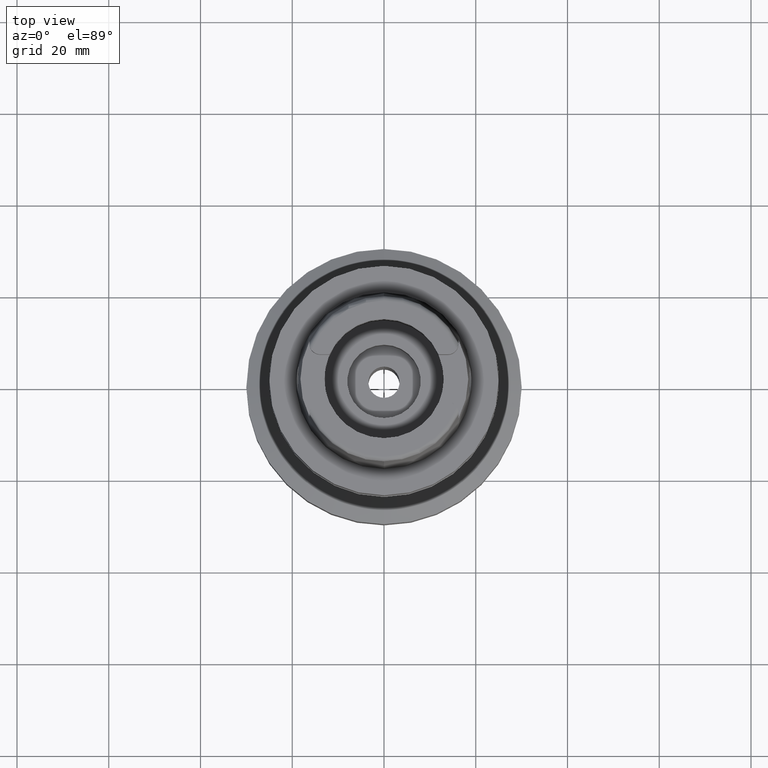
[diagram: clean part render]
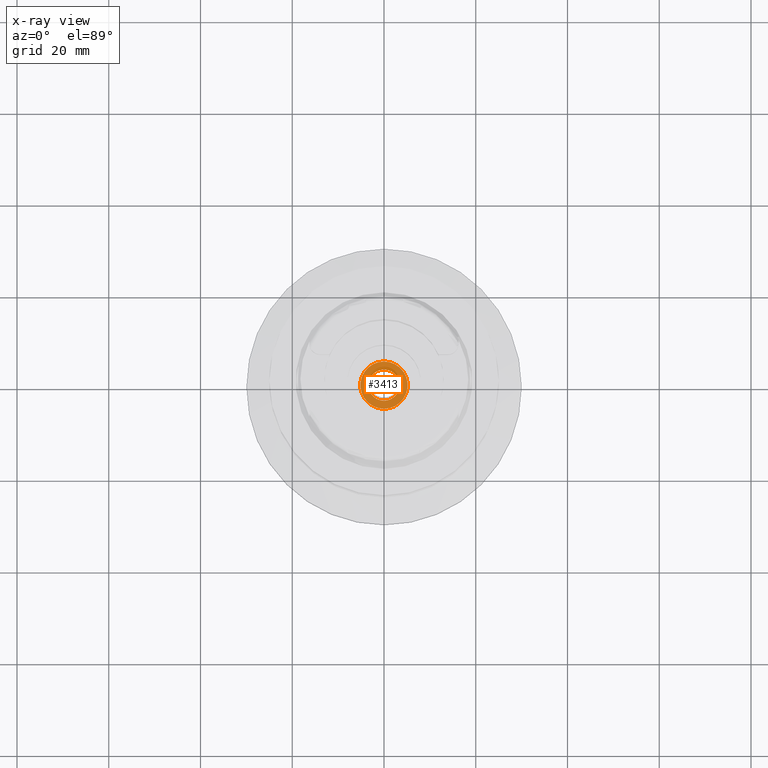
[diagram: x-ray — body ghosted, one internal face saturated and labeled with its STEP entity id]
A machine part, top view, then the same camera in x-ray: the body is ghosted and one INTERNAL B-rep face — a face not visible from any outside direction — is saturated and labeled: STEP entity #3413.
In plain terms, the highlighted planar face has unit normal (0, 0, 1).
Its self-contained STEP definition (entity closure, byte-faithful):
#891=CARTESIAN_POINT('',(0.E0,0.E0,-5.8E1));
#892=DIRECTION('',(0.E0,0.E0,1.E0));
#893=DIRECTION('',(0.E0,-1.E0,0.E0));
#894=AXIS2_PLACEMENT_3D('',#891,#892,#893);
#899=CARTESIAN_POINT('',(0.E0,0.E0,-5.8E1));
#900=DIRECTION('',(0.E0,0.E0,1.E0));
#901=DIRECTION('',(0.E0,1.E0,0.E0));
#902=AXIS2_PLACEMENT_3D('',#899,#900,#901);
#907=CARTESIAN_POINT('',(0.E0,0.E0,-5.8E1));
#908=DIRECTION('',(0.E0,0.E0,-1.E0));
#909=DIRECTION('',(0.E0,-1.E0,0.E0));
#910=AXIS2_PLACEMENT_3D('',#907,#908,#909);
#915=CARTESIAN_POINT('',(0.E0,0.E0,-5.8E1));
#916=DIRECTION('',(0.E0,0.E0,-1.E0));
#917=DIRECTION('',(0.E0,1.E0,0.E0));
#918=AXIS2_PLACEMENT_3D('',#915,#916,#917);
#2555=CARTESIAN_POINT('',(0.E0,3.4E0,-5.8E1));
#2556=VERTEX_POINT('',#2555);
#2557=CARTESIAN_POINT('',(0.E0,-3.4E0,-5.8E1));
#2558=VERTEX_POINT('',#2557);
#2559=CARTESIAN_POINT('',(0.E0,-5.15E0,-5.8E1));
#2560=CARTESIAN_POINT('',(0.E0,5.15E0,-5.8E1));
#2561=VERTEX_POINT('',#2559);
#2562=VERTEX_POINT('',#2560);
#3398=CARTESIAN_POINT('',(0.E0,0.E0,-5.8E1));
#3399=DIRECTION('',(0.E0,0.E0,1.E0));
#3400=DIRECTION('',(0.E0,1.E0,0.E0));
#3401=AXIS2_PLACEMENT_3D('',#3398,#3399,#3400);
#3402=PLANE('',#3401);
#3404=ORIENTED_EDGE('',*,*,#3403,.T.);
#3406=ORIENTED_EDGE('',*,*,#3405,.T.);
#3407=EDGE_LOOP('',(#3404,#3406));
#3408=FACE_OUTER_BOUND('',#3407,.F.);
#3409=ORIENTED_EDGE('',*,*,#3391,.T.);
#3410=ORIENTED_EDGE('',*,*,#3380,.T.);
#3411=EDGE_LOOP('',(#3409,#3410));
#3412=FACE_BOUND('',#3411,.F.);
#895=CIRCLE('',#894,5.15E0);
#903=CIRCLE('',#902,5.15E0);
#911=CIRCLE('',#910,3.4E0);
#919=CIRCLE('',#918,3.4E0);
#3380=EDGE_CURVE('',#2556,#2558,#919,.T.);
#3391=EDGE_CURVE('',#2558,#2556,#911,.T.);
#3403=EDGE_CURVE('',#2561,#2562,#895,.T.);
#3405=EDGE_CURVE('',#2562,#2561,#903,.T.);
#3413=ADVANCED_FACE('',(#3408,#3412),#3402,.F.);